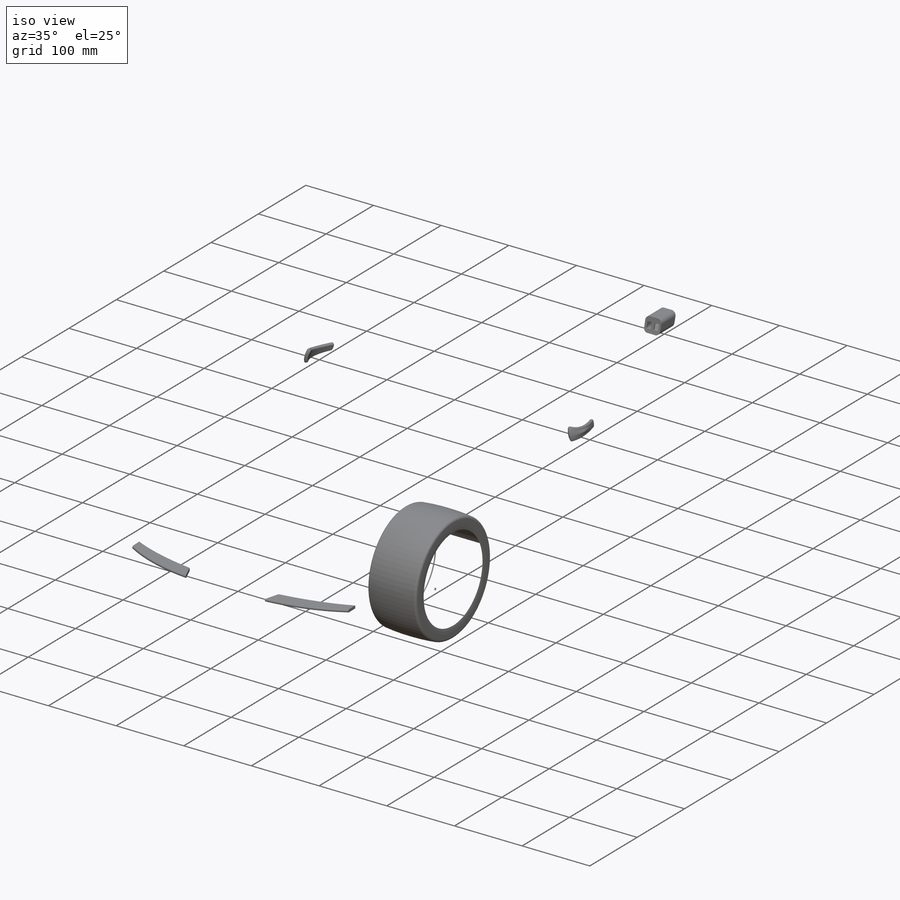
[diagram: iso view]
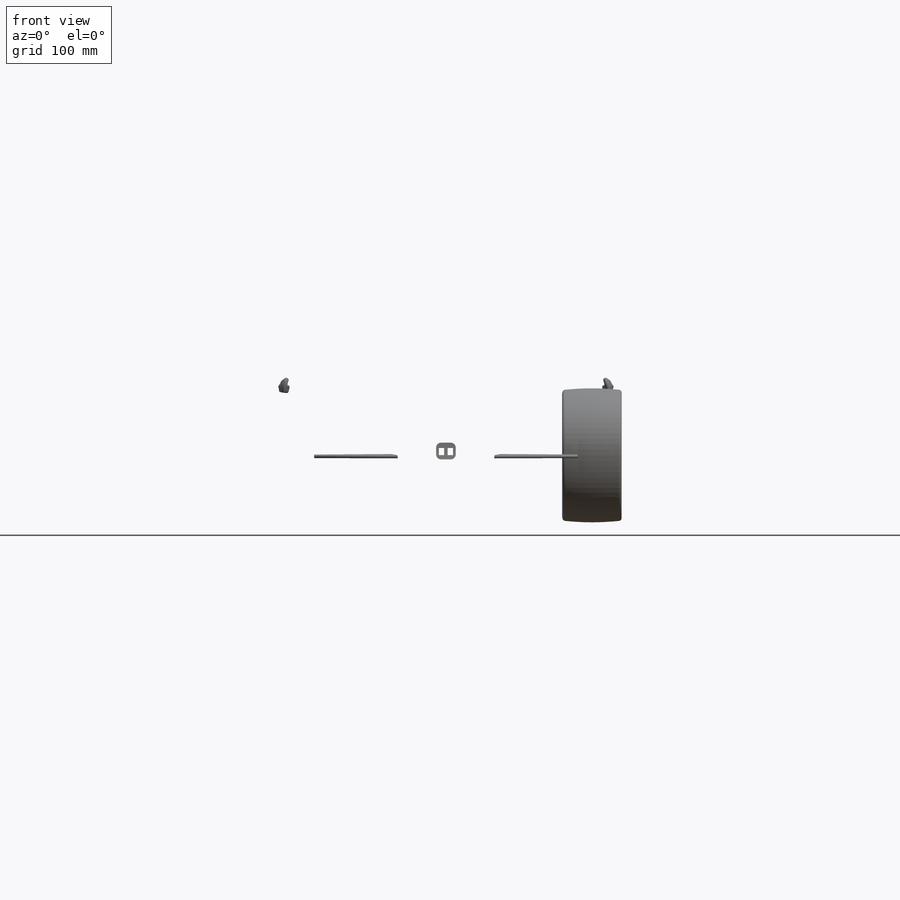
[diagram: front view]
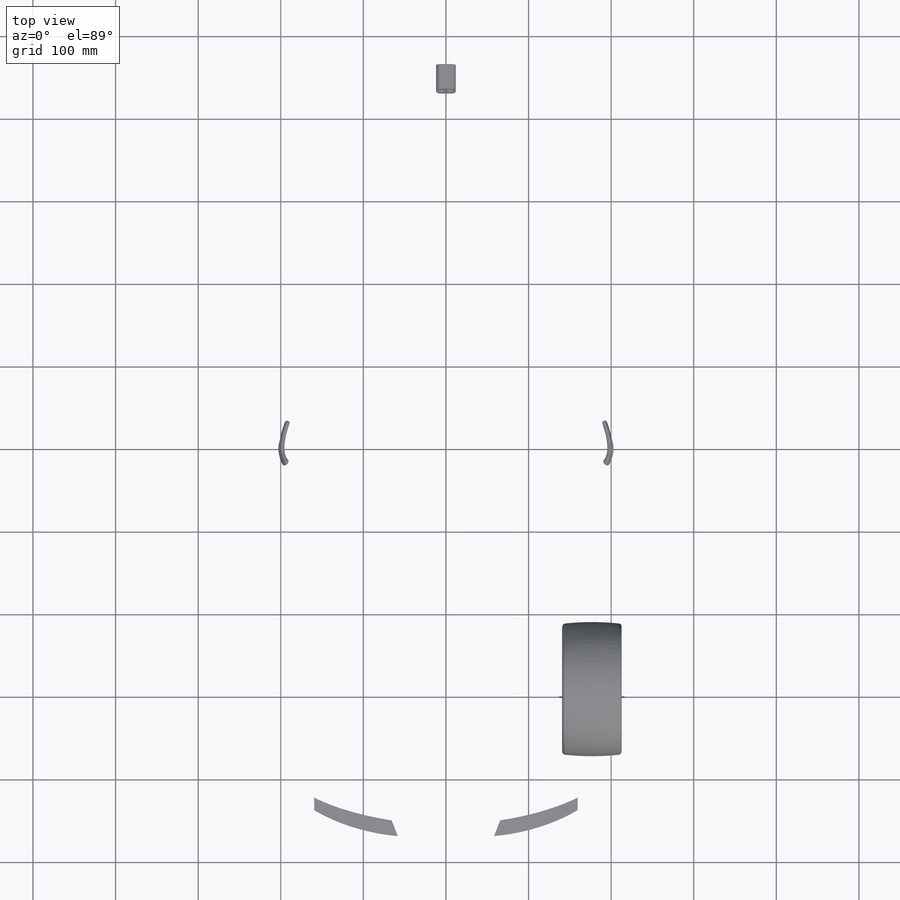
[diagram: top view]
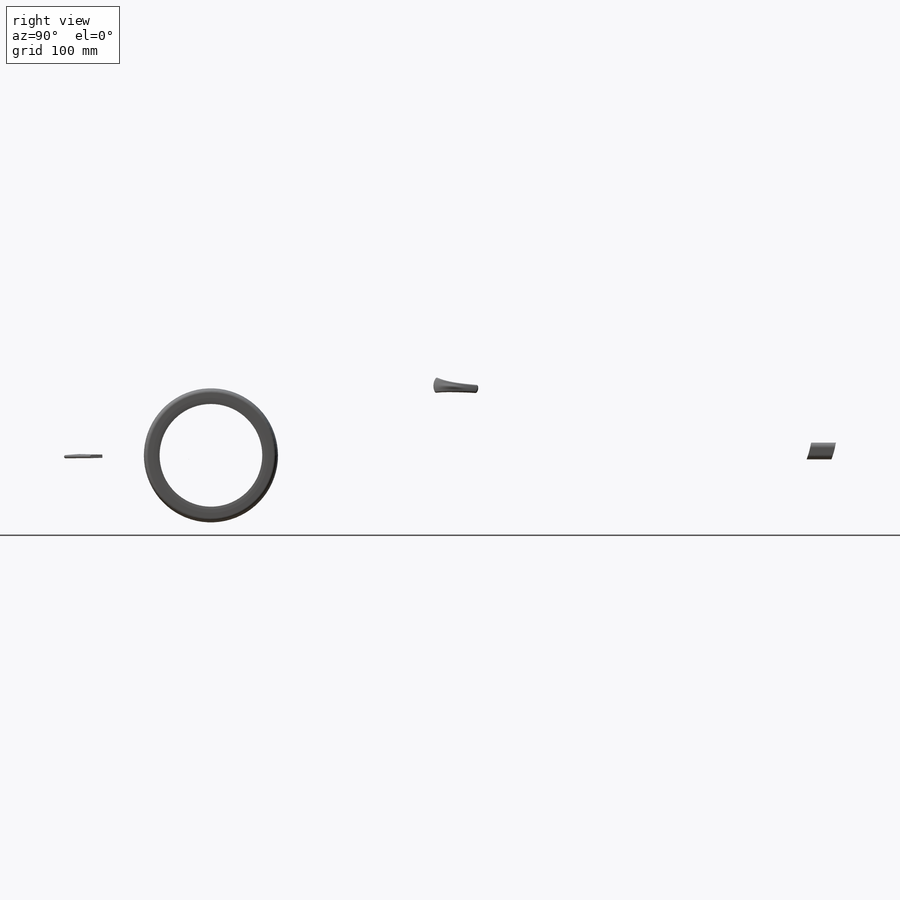
[diagram: right view]
SOLIDWORKS PART (.sldprt)
format: sldprt  version: not decoded by parser v0  size: 32,436,736 bytes
history: native  units: mm
features: sketch x213, mirror x13, fillet x12, surface_op x8, move_body x4, plane x3, cut_extrude x2, dome x2, boolean_combine x2, material x1, extrude x1 + 2 further entries (+21 scaffold rows collapsed; 6 parser-record rows omitted)
feature tree (290):
  scaffold x21  (default folders/planes/origin — collapsed)
  material  "Material <not specified>"
  sketch  "side view"
  sketch  "top view"
  sketch  "Sketch Picture7"
  sketch  "front vew"
  sketch  "Sketch Picture8"
  plane  "back Plane"  Offset=996mm
  sketch  "Sketch9"
  sketch  "Sketch Picture9"
  sketch  "Sketch10"
  sketch  "Sketch11"
  sketch  "Sketch21"
  sketch  "Sketch22"
  sketch  "Sketch23"
  sketch  "Sketch24"
  sketch  "Sketch25"
  sketch  "Sketch26"
  sketch  "Sketch29"
  sketch  "Sketch30"
  sketch  "Sketch32"
  sketch  "Sketch33"
  sketch  "Sketch34"
  sketch  "Sketch35"
  sketch  "Sketch36"
  sketch  "Sketch38"
  sketch  "Sketch39"
  sketch  "Sketch40"
  sketch  "Sketch41"
  sketch  "Sketch42"
  sketch  "3DSketch2"
  mirror  "Mirror3"
  sketch  "Sketch48"
  sketch  "Sketch49"
  sketch  "Sketch43"
  sketch  "Sketch50"
  sketch  "Sketch51"
  sketch  "Sketch52"
  sketch  "Sketch53"
  sketch  "Sketch54"
  sketch  "Sketch55"
  sketch  "Sketch56"
  sketch  "Sketch57"
  sketch  "Sketch58"
  mirror  "Mirror4"
  sketch  "Sketch59"
  sketch  "3DSketch4"
  sketch  "Sketch65"  dims[D1=6.0mm]
  sketch  "Sketch67"
  sketch  "Sketch69"
  sketch  "Sketch70"
  sketch  "Sketch86"
  sketch  "Sketch87"
  sketch  "Sketch116"
  sketch  "Sketch117"
  sketch  "Sketch119"
  sketch  "Sketch122"
  sketch  "Sketch123"
  sketch  "Sketch126"
  sketch  "Sketch127"
  sketch  "Sketch128"
  sketch  "Sketch129"
  sketch  "Sketch130"
  sketch  "Sketch131"
  sketch  "Sketch132"
  sketch  "Sketch133"
  sketch  "Sketch134"
  sketch  "Sketch135"
  sketch  "Sketch136"
  sketch  "Sketch137"
  sketch  "Sketch138"
  sketch  "Sketch139"
  sketch  "Sketch140"
  sketch  "Sketch147"
  sketch  "Sketch151"
  sketch  "Sketch150"
  sketch  "Sketch149"
  sketch  "Sketch152"
  sketch  "Sketch153"
  sketch  "3DSketch5"
  sketch  "3DSketch6"
  sketch  "Sketch143"
  sketch  "Sketch141"
  sketch  "3DSketch7"
  sketch  "Sketch162"
  sketch  "Sketch163"
  sketch  "Sketch164"
  sketch  "Sketch165"
  sketch  "Sketch172"
  sketch  "Sketch173"
  sketch  "Sketch175"
  sketch  "Sketch176"
  sketch  "Sketch177"
  sketch  "Sketch178"
  sketch  "Sketch179"
  sketch  "Sketch180"
  sketch  "Sketch181"
  sketch  "Sketch182"
  sketch  "3DSketch10"
  sketch  "3DSketch11"
  sketch  "Sketch184"
  sketch  "Sketch185"
  sketch  "Sketch186"
  sketch  "Sketch187"
  sketch  "3DSketch13"
  sketch  "Sketch189"
  sketch  "Sketch190"
  sketch  "Sketch192"
  sketch  "Sketch193"
  sketch  "3DSketch21"
  sketch  "Sketch197"  dims[D1=8.0mm]
  sketch  "Sketch198"
  sketch  "3DSketch22"
  sketch  "Sketch201"
  sketch  "3DSketch25"
  sketch  "3DSketch26"
  sketch  "Sketch202"
  sketch  "3DSketch27"
  mirror  "Mirror7"
  sketch  "3DSketch29"
  sketch  "Sketch196"  dims[c1.D1=8.0mm c1.D2=10.0mm c1.D3=15.0mm c2.D1=20.0mm c2.D2=8.0mm]
  sketch  "Sketch203"  dims[D1=6.0mm D2=9.0mm]
  sketch  "3DSketch30"
  sketch  "3DSketch31"
  sketch  "Sketch206"
  sketch  "Sketch207"
  mirror  "Mirror9"
  sketch  "Sketch208"
  sketch  "3DSketch32"
  sketch  "3DSketch32<4>"
  sketch  "3DSketch32<5>"
  sketch  "3DSketch32<6>"
  mirror  "Mirror10"
  sketch  "3DSketch33"
  surface_op  "Surface-Extrude1"
  fillet  "Fillet2"  Radius=2mm
  fillet  "Fillet3"  Radius=5mm
  sketch  "3DSketch34"
  sketch  "3DSketch36"  dims[D1=2.0mm]
  fillet  "Fillet4"  Radius=2mm
  mirror  "Mirror12"
  sketch  "Sketch209"  dims[D1=2.0mm]
  sketch  "Sketch210"
  sketch  "Sketch211"
  mirror  "Mirror14"
  sketch  "Sketch212"
  sketch  "Sketch213"  dims[D1=~15.649859mm]
  sketch  "3DSketch37"
  sketch  "Sketch215"  dims[D1=30.0mm]
  sketch  "Sketch216"  dims[D1=15.0mm D2=15.0mm]
  sketch  "Sketch217"  dims[D1=15.0mm D2=8.0mm]
  sketch  "Sketch218"  dims[c1.D1=5.0mm c2.D1=2.0mm]
  fillet  "Fillet9"  Radius=1mm
  fillet  "Fillet10"  Radius=1mm
  sketch  "Sketch219"  dims[c1.D1=5.0mm c1.D2=1.0mm c2.D1=2.0mm]
  sketch  "3DSketch39"
  extrude  "Boss-Extrude2"  Depth=30mm
  sketch  "3DSketch40"
  cut_extrude  "Cut-Extrude2"  Depth=28mm
  sketch  "Sketch221"
  cut_extrude  "Cut-Extrude3"  Depth=97mm
  fillet  "Fillet11"  Radius=0.5mm
  sketch  "3DSketch41"
  surface_op  "Surface-Extrude2"
  sketch  "Sketch222"  dims[D1=5.0mm D2=5.0mm D3=5.0mm]
  fillet  "Fillet12"  Radius=1mm
  sketch  "Sketch223"
  sketch  "Sketch224"
  sketch  "Sketch225"
  sketch  "Sketch226"
  sketch  "3DSketch42"
  sketch  "3DSketch43"
  surface_op  "Surface-Extrude3"
  sketch  "Sketch227"
  sketch  "3DSketch44"
  sketch  "3DSketch45"
  sketch  "Sketch228"
  sketch  "3DSketch48"
  surface_op  "Surface-Extrude4"
  sketch  "Sketch229"
  sketch  "3DSketch49"
  sketch  "3DSketch49<3>"
  sketch  "3DSketch50"
  surface_op  "Surface-Extrude5"
  sketch  "Sketch230"
  sketch  "3DSketch51"
  sketch  "3DSketch52"
  sketch  "3DSketch53"
  sketch  "3DSketch54"
  surface_op  "Surface-Extrude6"
  sketch  "Sketch231"
  sketch  "Sketch232"  dims[D1=~6.039756mm]
  sketch  "3DSketch55"
  sketch  "3DSketch56"  dims[D1=5.0mm]
  fillet  "Fillet13"  Radius=2mm
  dome  "Dome1"
  mirror  "Mirror15"
  sketch  "3DSketch58"  dims[D1=42.0mm]
  sketch  "Sketch233"
  sketch  "3DSketch59"  dims[D1=30.0mm]
  sketch  "3DSketch60"
  sketch  "3DSketch61"
  sketch  "3DSketch62"
  sketch  "Sketch235"
  sketch  "Sketch236"
  sketch  "3DSketch61<6>"
  sketch  "3DSketch63"
  mirror  "Mirror16"
  sketch  "Sketch237"  dims[c1.D1=~11.175318mm c2.D1=1.0mm c3.D1=2.0mm]
  sketch  "Sketch238"
  sketch  "3DSketch64"
  surface_op  "Surface-Extrude7"
  sketch  "3DSketch65"
  sketch  "Sketch239"  dims[D1=6.0mm]
  sketch  "3DSketch66"
  sketch  "3DSketch67"
  mirror  "Mirror17"
  sketch  "Sketch240"  dims[D1=1.0mm]
  sketch  "Sketch241"
  sketch  "Sketch242"  dims[D1=~5.520127mm]
  sketch  "3DSketch68"
  surface_op  "Surface-Extrude8"
  sketch  "3DSketch69"
  plane  "Plane1"
  sketch  "Sketch243"  dims[D1=5.0mm D2=2.0mm D3=5.0mm]
  plane  "Plane2"  Offset=23mm
  sketch  "Sketch244"  dims[D1=0.0mm]
  sketch  "3DSketch70"
  sketch  "3DSketch71"
  sketch  "3DSketch72"
  sketch  "3DSketch73"
  sketch  "Sketch243<4>"
  sketch  "3DSketch74"
  sketch  "3DSketch75"
  sketch  "Sketch244<6>"
  sketch  "Sketch244<7>"
  sketch  "Sketch243<5>"
  sketch  "3DSketch70<3>"
  sketch  "3DSketch73<2>"
  sketch  "3DSketch74<3>"
  sketch  "Sketch244<8>"
  sketch  "3DSketch70<4>"
  sketch  "3DSketch70<5>"
  sketch  "3DSketch71<2>"
  sketch  "3DSketch72<2>"
  sketch  "Sketch245"  dims[D1=2.0mm]
  mirror  "Mirror18"
  sketch  "3DSketch76"
  sketch  "Sketch247"  dims[c1.D1=2.0mm c2.D1=1.0mm c3.D1=1.5mm c4.D1=2.0mm c5.D1=1.5mm]
  mirror  "Mirror19"
  fillet  "Fillet19"  Radius=0.25mm
  fillet  "Fillet20"  Radius=0.25mm
  fillet  "Fillet21"  Radius=0.25mm
  fillet  "Fillet22"  Radius=0.25mm
  "back whel"
  parser-record x6  (decoder bookkeeping rows leaked as tree rows — omitted from the tree; the rows remain in map.json)
  move_body  "Body-Move/Copy2"
  boolean_combine  "Combine2"
  move_body  "Body-Move/Copy3"
  dome  "back whel1"
  "Axes2"
  move_body  "Body-Move/Copy4"
  boolean_combine  "Combine4"
  move_body  "Body-Move/Copy5"
  mirror  "Mirror20"
decode coverage: 40 of 257 modeling features carry decoded parameters; 2 rows unclassified (native names shown)
note: ~ marks probable driven/reference dimensions
note: suppression state not decoded; provenance and decode notes live in map.json
